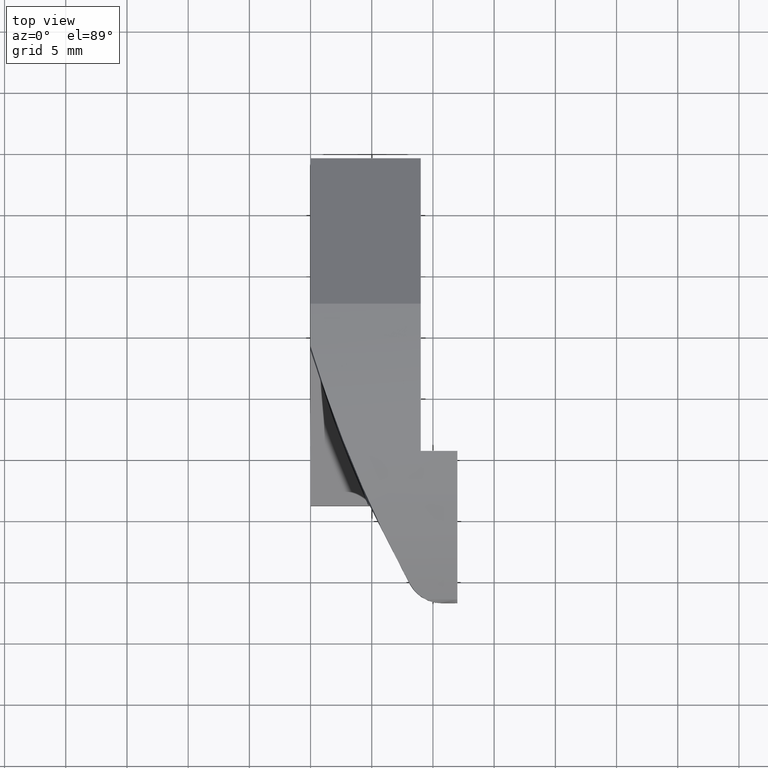
[diagram: clean part render]
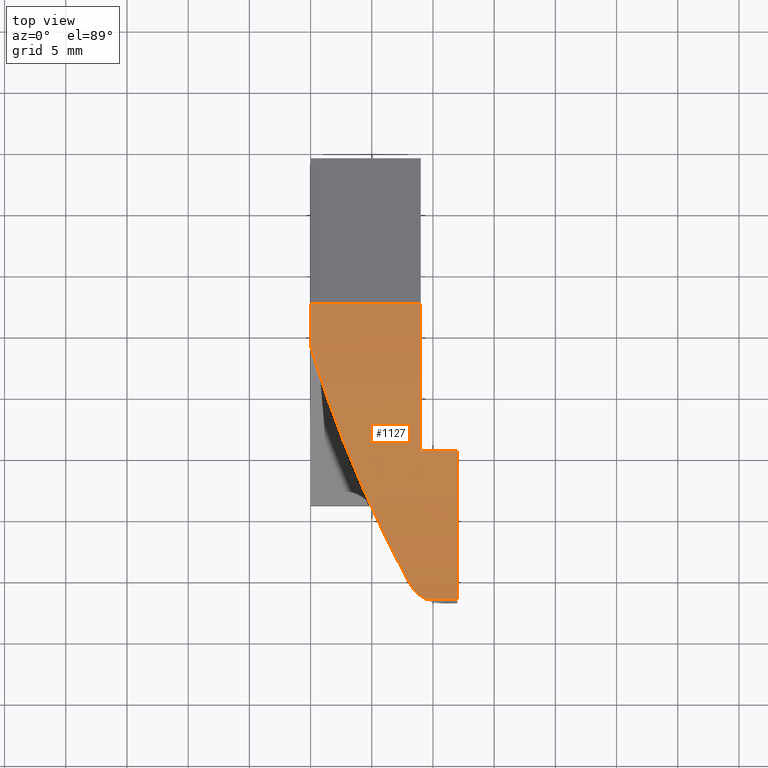
[diagram: same view with one face highlighted and labeled with its STEP entity id]
A machine part, top view. The second image highlights one B-rep face of the part: STEP entity #1127.
In plain terms, the highlighted face is a freeform B-spline surface patch.
Its self-contained STEP definition (entity closure, byte-faithful):
#191=CARTESIAN_POINT('',(9.421686049242210,-22.015973820939799,23.222766775625249));
#192=VERTEX_POINT('',#191);
#210=CARTESIAN_POINT('',(8.126531298087482,-20.776144938068700,24.338278523998451));
#211=VERTEX_POINT('',#210);
#212=CARTESIAN_POINT('',(8.126531298087482,-20.776144938068700,24.338278523998451));
#213=CARTESIAN_POINT('',(8.196000331214723,-20.902177960423540,24.230691607493910));
#214=CARTESIAN_POINT('',(8.274331722824085,-21.022967835150482,24.125889087116171));
#215=CARTESIAN_POINT('',(8.449300000535814,-21.254126779957488,23.922495598559571));
#216=CARTESIAN_POINT('',(8.545919941892715,-21.364502692025251,23.823895725429029));
#217=CARTESIAN_POINT('',(8.706167596886898,-21.521737987937929,23.681634016289941));
#218=CARTESIAN_POINT('',(8.762149779421121,-21.572755296814599,23.635159044341371));
#219=CARTESIAN_POINT('',(8.850334450253122,-21.647049122480759,23.567061607789132));
#220=CARTESIAN_POINT('',(8.880432569858176,-21.671441090468289,23.544632240596648));
#221=CARTESIAN_POINT('',(8.942114592572416,-21.719447547473450,23.500354561476989));
#222=CARTESIAN_POINT('',(8.973749924635143,-21.743096172937751,23.478474381308828));
#223=CARTESIAN_POINT('',(9.134650834289884,-21.858444744257099,23.371440707022298));
#224=CARTESIAN_POINT('',(9.272665985582227,-21.942119953698288,23.292782757074558));
#225=CARTESIAN_POINT('',(9.421686049242162,-22.015973820939848,23.222766775625200));
#226=B_SPLINE_CURVE_WITH_KNOTS('',3,(#212,#213,#214,#215,#216,#217,#218,#219,#220,#221,#222,#223,#224,#225),.UNSPECIFIED.,.F.,.U.,(4,2,2,2,2,2,4),(0.0,0.250000000000004,0.500000000000008,0.625000000000009,0.687500000000008,0.750000000000006,1.0),.UNSPECIFIED.);
#227=EDGE_CURVE('',#211,#192,#226,.T.);
#298=CARTESIAN_POINT('',(1.110223E-013,-1.499999999988892,31.964824416836649));
#299=VERTEX_POINT('',#298);
#300=CARTESIAN_POINT('',(1.110223E-013,-1.499999999988892,31.964824416836649));
#301=CARTESIAN_POINT('',(0.275701778675477,-2.409971441301873,31.922122566071948));
#302=CARTESIAN_POINT('',(0.561779388931470,-3.307450408910026,31.841151055424270));
#303=CARTESIAN_POINT('',(1.153612222872029,-5.078805464828399,31.607022380986489));
#304=CARTESIAN_POINT('',(1.459368902548166,-5.952678542879896,31.453854301342339));
#305=CARTESIAN_POINT('',(2.089525868312321,-7.677767274345413,31.077825244471899));
#306=CARTESIAN_POINT('',(2.413927675960965,-8.528981416029422,30.854960067697210));
#307=CARTESIAN_POINT('',(3.080333867677292,-10.209337038130281,30.340427189082870));
#308=CARTESIAN_POINT('',(3.422340052468927,-11.038478205994251,30.048761030116779));
#309=CARTESIAN_POINT('',(3.860163769283055,-12.061265864561360,29.640755190749910));
#310=CARTESIAN_POINT('',(3.948273818637639,-12.265208772851871,29.556950027516791));
#311=CARTESIAN_POINT('',(4.125382088354910,-12.671443599943959,29.385083941758801));
#312=CARTESIAN_POINT('',(4.391750373759363,-13.276886215981641,29.121510824235671));
#313=CARTESIAN_POINT('',(4.660102018353299,-13.870783310620460,28.840805836898060));
#314=CARTESIAN_POINT('',(5.199081809736314,-15.043588207812901,28.256915927316012));
#315=CARTESIAN_POINT('',(5.561443302614374,-15.805498198481910,27.837729550653929));
#316=CARTESIAN_POINT('',(6.290166723900183,-17.290893576327349,26.940266501460439));
#317=CARTESIAN_POINT('',(6.656532385757526,-18.014377551681338,26.461990517984500));
#318=CARTESIAN_POINT('',(7.390942119511431,-19.423600728315321,25.445598352081198));
#319=CARTESIAN_POINT('',(7.758991263814303,-20.109341626282280,24.907488964958421));
#320=CARTESIAN_POINT('',(8.126531298087482,-20.776144938068700,24.338278523998451));
#321=B_SPLINE_CURVE_WITH_KNOTS('',3,(#300,#301,#302,#303,#304,#305,#306,#307,#308,#309,#310,#311,#312,#313,#314,#315,#316,#317,#318,#319,#320),.UNSPECIFIED.,.F.,.U.,(4,2,2,2,2,2,1,2,2,2,4),(0.0,0.125000000000000,0.250000000000000,0.375000000000000,0.500000000000000,0.531249999999999,0.562499999999999,0.624999999999999,0.750000000000000,0.875000000000000,1.0),.UNSPECIFIED.);
#322=EDGE_CURVE('',#299,#211,#321,.T.);
#739=CARTESIAN_POINT('',(11.999999999999799,-22.015973820940101,23.222766775611952));
#740=VERTEX_POINT('',#739);
#756=CARTESIAN_POINT('',(9.421686049242210,-22.015973820939799,23.222766775625249));
#757=CARTESIAN_POINT('',(11.999999999999799,-22.015973820940101,23.222766775611952));
#758=QUASI_UNIFORM_CURVE('',1,(#756,#757),.UNSPECIFIED.,.F.,.U.);
#759=EDGE_CURVE('',#192,#740,#758,.T.);
#820=CARTESIAN_POINT('',(11.999999999999799,-10.000000000021419,30.397368307108199));
#821=VERTEX_POINT('',#820);
#822=CARTESIAN_POINT('',(11.999999999999799,-10.000000000021400,30.397368307108170));
#823=CARTESIAN_POINT('',(11.999999999999803,-16.811881045071235,28.156423967375421));
#824=CARTESIAN_POINT('',(11.999999999999799,-22.015973820940079,23.222766775611941));
#832=(BOUNDED_CURVE()B_SPLINE_CURVE(2,(#822,#823,#824),.UNSPECIFIED.,.F.,.U.)CURVE()GEOMETRIC_REPRESENTATION_ITEM()QUASI_UNIFORM_CURVE()RATIONAL_B_SPLINE_CURVE((1.0,0.975798634502771,1.0))REPRESENTATION_ITEM(''));
#833=EDGE_CURVE('',#821,#740,#832,.T.);
#878=CARTESIAN_POINT('',(9.000000000000119,-10.000000000021419,30.397368307108199));
#879=VERTEX_POINT('',#878);
#885=CARTESIAN_POINT('',(11.999999999999799,-10.000000000021419,30.397368307108199));
#886=CARTESIAN_POINT('',(9.000000000000119,-10.000000000021419,30.397368307108199));
#887=QUASI_UNIFORM_CURVE('',1,(#885,#886),.UNSPECIFIED.,.F.,.U.);
#888=EDGE_CURVE('',#821,#879,#887,.T.);
#902=CARTESIAN_POINT('',(1.110223E-013,2.000000000209915,31.937438845303401));
#903=VERTEX_POINT('',#902);
#904=CARTESIAN_POINT('',(1.110223E-013,2.000000000209921,31.937438845303380));
#905=CARTESIAN_POINT('',(1.110223E-013,0.250749969637947,32.046981131347486));
#906=CARTESIAN_POINT('',(1.110223E-013,-1.499999999988892,31.964824416836649));
#914=(BOUNDED_CURVE()B_SPLINE_CURVE(2,(#904,#905,#906),.UNSPECIFIED.,.F.,.U.)CURVE()GEOMETRIC_REPRESENTATION_ITEM()QUASI_UNIFORM_CURVE()RATIONAL_B_SPLINE_CURVE((1.0,0.998503427257705,1.0))REPRESENTATION_ITEM(''));
#915=EDGE_CURVE('',#903,#299,#914,.T.);
#1005=CARTESIAN_POINT('',(9.000000000000119,2.000000000209915,31.937438845303401));
#1006=VERTEX_POINT('',#1005);
#1012=CARTESIAN_POINT('',(9.000000000000119,2.000000000209921,31.937438845303380));
#1013=CARTESIAN_POINT('',(9.000000000000119,-4.148238578822799,32.322456479901653));
#1014=CARTESIAN_POINT('',(9.000000000000119,-10.000000000021389,30.397368307108170));
#1022=(BOUNDED_CURVE()B_SPLINE_CURVE(2,(#1012,#1013,#1014),.UNSPECIFIED.,.F.,.U.)CURVE()GEOMETRIC_REPRESENTATION_ITEM()QUASI_UNIFORM_CURVE()RATIONAL_B_SPLINE_CURVE((1.0,0.981969802514193,1.0))REPRESENTATION_ITEM(''));
#1023=EDGE_CURVE('',#1006,#879,#1022,.T.);
#1093=CARTESIAN_POINT('',(9.000000000000119,2.000000000209915,31.937438845303401));
#1094=CARTESIAN_POINT('',(1.110223E-013,2.000000000209915,31.937438845303401));
#1095=QUASI_UNIFORM_CURVE('',1,(#1093,#1094),.UNSPECIFIED.,.F.,.U.);
#1096=EDGE_CURVE('',#1006,#903,#1095,.T.);
#1103=CARTESIAN_POINT('',(12.299999999999789,2.835339335901052,31.874140786045171));
#1104=CARTESIAN_POINT('',(-0.307499999999881,2.835339335901052,31.874140786045171));
#1105=CARTESIAN_POINT('',(12.299999999999789,-12.312856764969908,33.221636756556478));
#1106=CARTESIAN_POINT('',(-0.307499999999881,-12.312856764969908,33.221636756556478));
#1107=CARTESIAN_POINT('',(12.299999999999788,-22.923812447060165,22.327087201219072));
#1108=CARTESIAN_POINT('',(-0.307499999999881,-22.923812447060165,22.327087201219072));
#1116=(BOUNDED_SURFACE()B_SPLINE_SURFACE(1,2,((#1103,#1105,#1107),(#1104,#1106,#1108)),.UNSPECIFIED.,.F.,.F.,.U.)B_SPLINE_SURFACE_WITH_KNOTS((2,2),(3,3),(0.0,12.607499999999670),(0.0,28.869619151896242),.UNSPECIFIED.)GEOMETRIC_REPRESENTATION_ITEM()RATIONAL_B_SPLINE_SURFACE(((1.0,0.901128062070463,0.995439622788431),(1.0,0.901128062070463,0.995439622788431)))REPRESENTATION_ITEM('')SURFACE());
#1117=ORIENTED_EDGE('',*,*,#915,.T.);
#1118=ORIENTED_EDGE('',*,*,#322,.T.);
#1119=ORIENTED_EDGE('',*,*,#227,.T.);
#1120=ORIENTED_EDGE('',*,*,#759,.T.);
#1121=ORIENTED_EDGE('',*,*,#833,.F.);
#1122=ORIENTED_EDGE('',*,*,#888,.T.);
#1123=ORIENTED_EDGE('',*,*,#1023,.F.);
#1124=ORIENTED_EDGE('',*,*,#1096,.T.);
#1125=EDGE_LOOP('',(#1117,#1118,#1119,#1120,#1121,#1122,#1123,#1124));
#1126=FACE_OUTER_BOUND('',#1125,.T.);
#1127=ADVANCED_FACE('',(#1126),#1116,.T.);